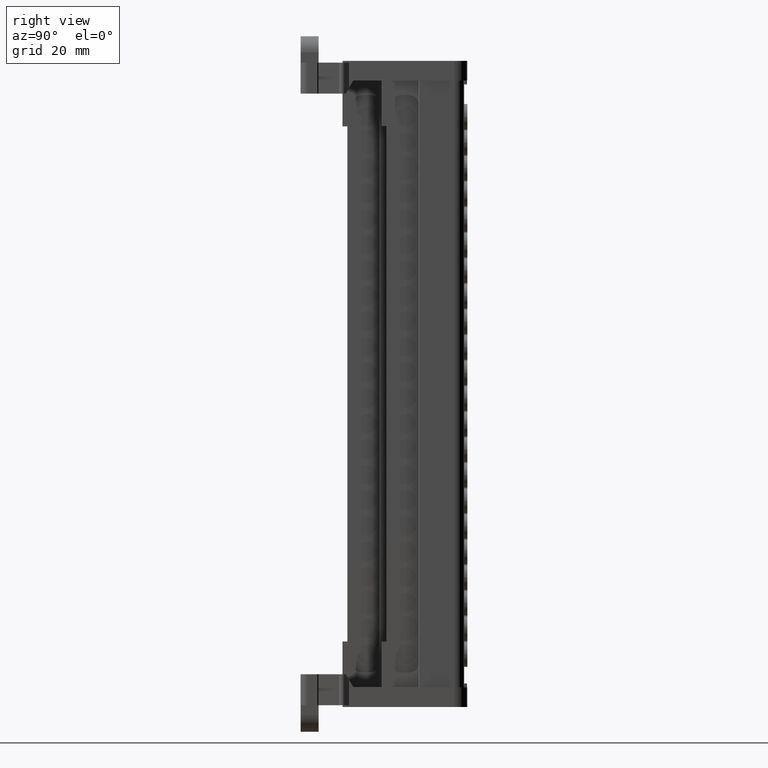
[diagram: clean part render]
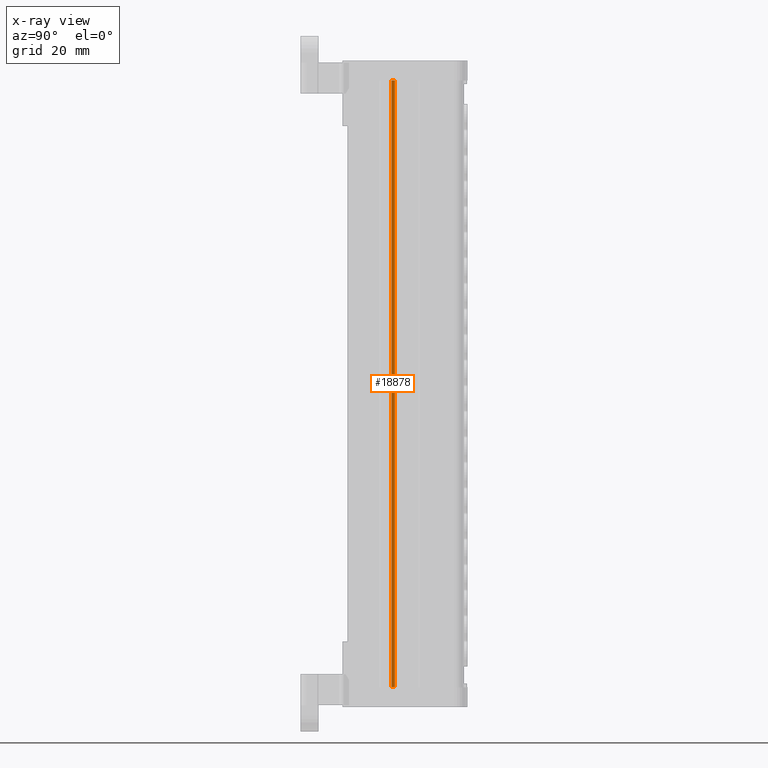
[diagram: x-ray — body ghosted, one internal face saturated and labeled with its STEP entity id]
A machine part, right view, then the same camera in x-ray: the body is ghosted and one INTERNAL B-rep face — a face not visible from any outside direction — is saturated and labeled: STEP entity #18878.
In plain terms, the highlighted planar face has unit normal (-1, 0, 0).
Its self-contained STEP definition (entity closure, byte-faithful):
#11554 = VERTEX_POINT ( 'NONE', #64682 ) ;
#11629 = VERTEX_POINT ( 'NONE', #64812 ) ;
#12426 = VERTEX_POINT ( 'NONE', #63021 ) ;
#12481 = VERTEX_POINT ( 'NONE', #63080 ) ;
#15785 = EDGE_CURVE ( 'NONE', #11629, #11554, #66215, .T. ) ;
#15942 = EDGE_CURVE ( 'NONE', #11554, #12481, #96803, .T. ) ;
#16030 = EDGE_CURVE ( 'NONE', #11629, #12426, #68665, .T. ) ;
#18878 = ADVANCED_FACE ( 'NONE', ( #83488 ), #83471, .T. ) ;
#24784 = EDGE_CURVE ( 'NONE', #12481, #12426, #90548, .T. ) ;
#38314 = EDGE_LOOP ( 'NONE', ( #68286, #68282, #68400, #68470 ) ) ;
#59746 = VECTOR ( 'NONE', #68655, 1000.000000000000000 ) ;
#63021 = CARTESIAN_POINT ( 'NONE',  ( -44.09875516865890400, 26.32396892253597900, -36.09779384098943900 ) ) ;
#63080 = CARTESIAN_POINT ( 'NONE',  ( -44.09875516865891900, 27.39247177082269500, -36.09779384098941800 ) ) ;
#64682 = CARTESIAN_POINT ( 'NONE',  ( -44.09875516857894700, 27.39247177082401700, 148.9721892898925500 ) ) ;
#64812 = CARTESIAN_POINT ( 'NONE',  ( -44.09875516857893300, 26.32396892253851200, 148.9721892898926700 ) ) ;
#64851 = VECTOR ( 'NONE', #90574, 1000.000000000000000 ) ;
#66215 = LINE ( 'NONE', #66285, #71348 ) ;
#66274 = DIRECTION ( 'NONE',  ( 2.013179058991935000E-014, 1.000000000000000000, -8.698692224046987300E-027 ) ) ;
#66285 = CARTESIAN_POINT ( 'NONE',  ( -44.09875516857895400, 27.39247177082274800, 148.9721892898926700 ) ) ;
#68282 = ORIENTED_EDGE ( 'NONE', *, *, #15942, .T. ) ;
#68286 = ORIENTED_EDGE ( 'NONE', *, *, #15785, .T. ) ;
#68400 = ORIENTED_EDGE ( 'NONE', *, *, #24784, .T. ) ;
#68470 = ORIENTED_EDGE ( 'NONE', *, *, #16030, .F. ) ;
#68655 = DIRECTION ( 'NONE',  ( -4.320873588066585300E-013, -1.604972357196100300E-014, -1.000000000000000000 ) ) ;
#68665 = LINE ( 'NONE', #68668, #59746 ) ;
#68668 = CARTESIAN_POINT ( 'NONE',  ( -44.09875516861306000, 26.32396892253768100, 69.96599374775861700 ) ) ;
#69517 = CARTESIAN_POINT ( 'NONE',  ( -44.09875516857894700, 27.39247177082401700, 148.9721892898925500 ) ) ;
#69536 = CARTESIAN_POINT ( 'NONE',  ( -44.09875516860560700, 27.39247177082401700, 87.28219491293198500 ) ) ;
#69544 = CARTESIAN_POINT ( 'NONE',  ( -44.09875516863227300, 27.39247177082401700, 25.59220053597126900 ) ) ;
#69579 = CARTESIAN_POINT ( 'NONE',  ( -44.09875516865891900, 27.39247177082269500, -36.09779384098941800 ) ) ;
#71348 = VECTOR ( 'NONE', #66274, 1000.000000000000000 ) ;
#82295 = AXIS2_PLACEMENT_3D ( 'NONE', #83537, #83468, #83482 ) ;
#83468 = DIRECTION ( 'NONE',  ( -1.000000000000000000, 2.013179058991935000E-014, 4.320873588066581800E-013 ) ) ;
#83471 = PLANE ( 'NONE',  #82295 ) ;
#83482 = DIRECTION ( 'NONE',  ( 4.320873588066581800E-013, 0.0000000000000000000, 1.000000000000000000 ) ) ;
#83488 = FACE_OUTER_BOUND ( 'NONE', #38314, .T. ) ;
#83537 = CARTESIAN_POINT ( 'NONE',  ( -44.09875516861309600, 27.39247177082274800, 69.96599374775861700 ) ) ;
#90548 = LINE ( 'NONE', #90565, #64851 ) ;
#90565 = CARTESIAN_POINT ( 'NONE',  ( -44.09875516865892600, 27.39247177082274800, -36.09779384098941800 ) ) ;
#90574 = DIRECTION ( 'NONE',  ( -2.013179058991935000E-014, -1.000000000000000000, 8.698692224046987300E-027 ) ) ;
#96803 = B_SPLINE_CURVE_WITH_KNOTS ( 'NONE', 3,
 ( #69517, #69536, #69544, #69579 ),
 .UNSPECIFIED., .F., .F.,
 ( 4, 4 ),
 ( 0.0000000000000000000, 1.000000000000000000 ),
 .UNSPECIFIED. ) ;